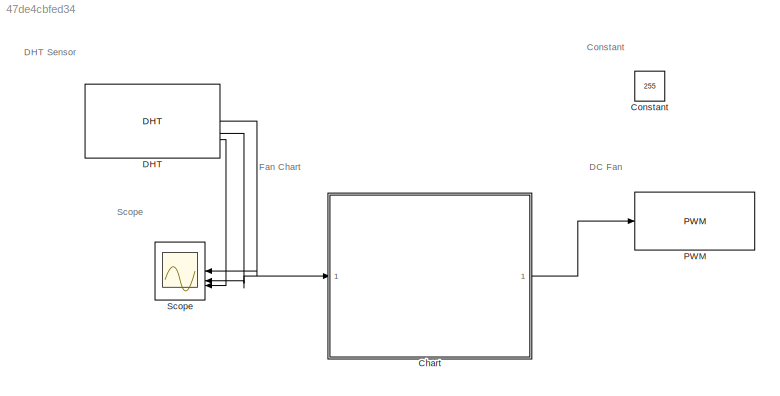
MODEL slx_47de4cbfed34
KIND model
CONFIG AbsTol = auto
CONFIG EnableMultiTasking = off
CONFIG FixedStep = auto
CONFIG MaxStep = auto
CONFIG MinStep = auto
CONFIG RelTol = 1e-3
CONFIG SampleTimeConstraint = Unconstrained
CONFIG SolverName = FixedStepAuto
CONFIG StartTime = 0.0
CONFIG StopTime = inf
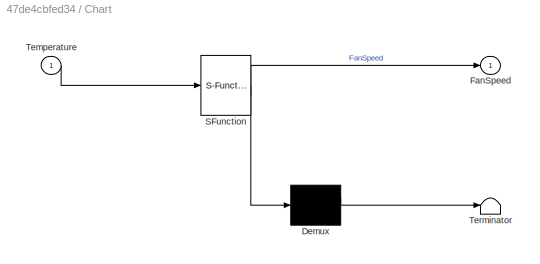
BLOCK [SubSystem] Chart
  ErrorFcn = Stateflow.Translate.translate
  PermitHierarchicalResolution = ExplicitOnly
  SFBlockType = Chart
  TreatAsAtomicUnit = on
BLOCK [Demux] Chart/ Demux 
  Outputs = 1
BLOCK [S-Function] Chart/ SFunction 
  EnableBusSupport = off
  FunctionName = sf_sfun
  PortCounts = [1 2]
  SFcnIsStateOwnerBlock = off
  SFunctionDeploymentMode = off
  Tag = Stateflow S-Function 3
BLOCK [Terminator] Chart/ Terminator 
BLOCK [Outport] Chart/FanSpeed
BLOCK [Inport] Chart/Temperature
BLOCK [Constant] Constant
  Value = 255
BLOCK [Reference] DHT  REF=Arduino_Additional_Lib/DHT
  SourceBlock = Arduino_Additional_Lib/DHT
  SourceProductName = Arduino Additional Sensors Library
  SourceType = Arduino DHT Sensor
BLOCK [Reference] PWM  REF=arduinolib/PWM
  SourceBlock = arduinolib/PWM
  SourceType = Arduino PWM
BLOCK [Scope] Scope
  Floating = off
  NumInputPorts = 3
  ScopeSpecificationString = Simulink.scopes.TimeScopeBlockCfg('CurrentConfiguration', extmgr.ConfigurationSet(extmgr.Configuration('Core','General UI',true),extmgr.Configuration('Core','Source UI',true),extmgr.Configuration('Sources','WiredSimulink',true),extmgr.Configuration('Visuals','Time Domain',true),extmgr.Configuration('Tools','Plot Navigation',true),extmgr.Configuration('Tools','Measurements',true)),'Version','2023b'...<+1ch>
ANNOTATION (root): Constant
ANNOTATION (root): DC Fan
ANNOTATION (root): DHT Sensor
ANNOTATION (root): Fan Chart
ANNOTATION (root): Scope
LINE Chart:1 -> PWM:1
LINE DHT:1 -> Scope:1
NET DHT:2 -> Chart:1, Scope:2
LINE DHT:3 -> Scope:3
note: NET lines group one-source signal fan-out (src -> all destinations, sorted); 1:1 wires keep LINE
CHART Chart states=2 transitions=3
  STATE_LABEL 'InitialState\nFanSpeed = 0;'
  STATE_LABEL 'ActivatedState\nFanSpeed = 255;'
CHART  states=0 transitions=0
